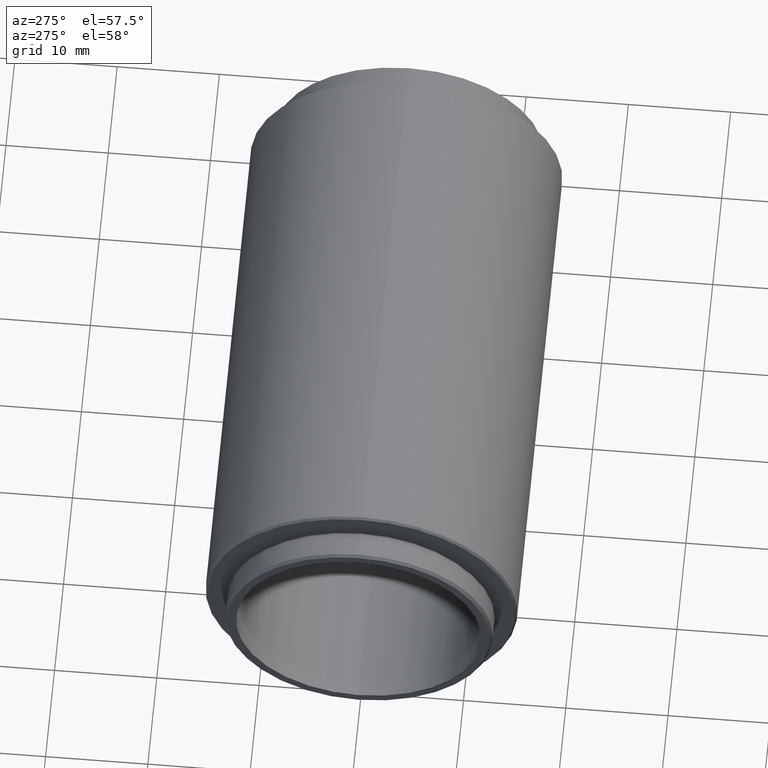
[diagram: clean part render]
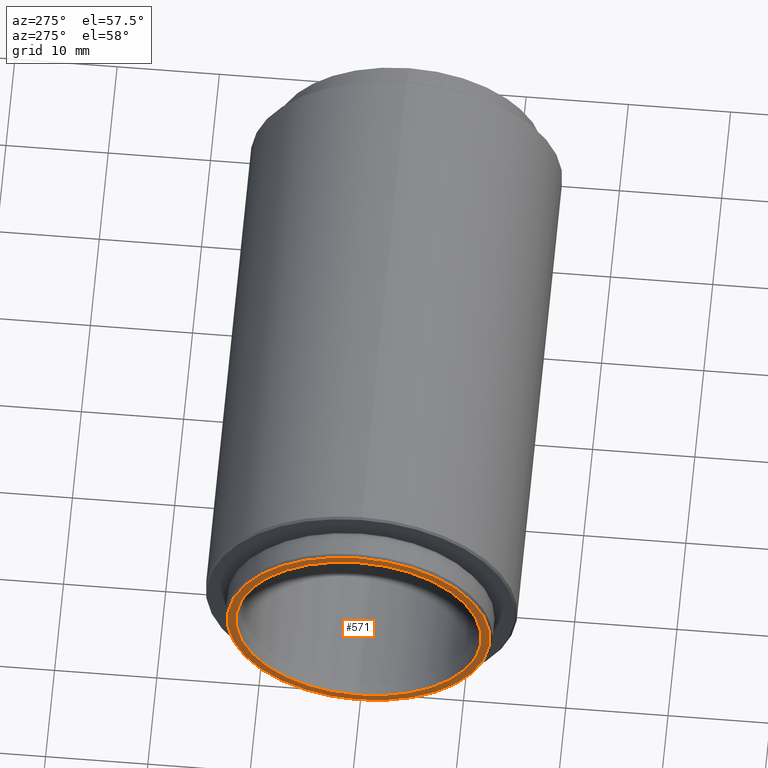
[diagram: same view with one face highlighted and labeled with its STEP entity id]
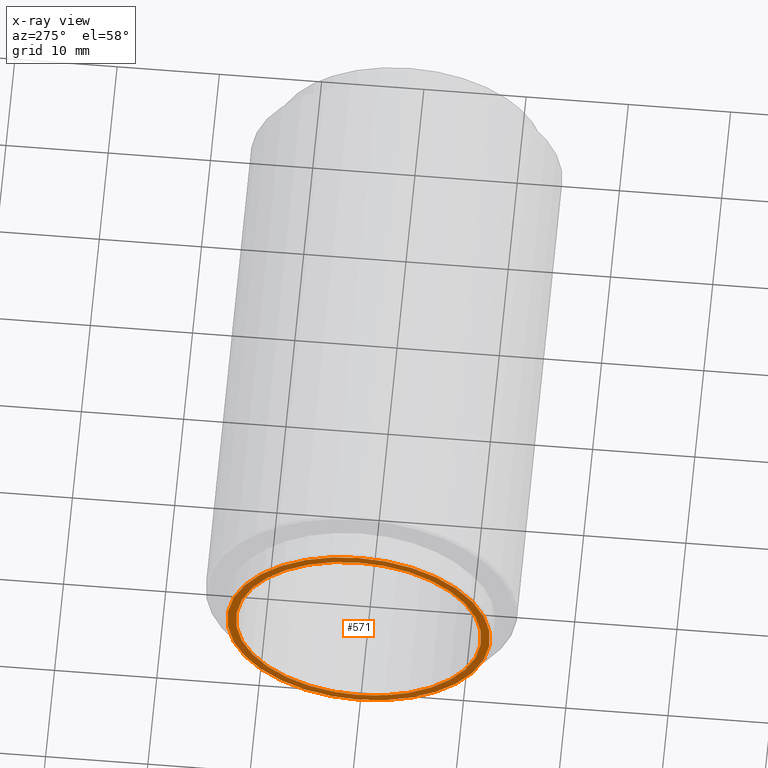
[diagram: x-ray of the same camera — body ghosted, the highlighted face saturated]
A machine part, auxiliary view. The second image highlights one B-rep face of the part: STEP entity #571.
The next image is the same camera in x-ray: the body ghosted, the highlighted face saturated — about 0% of this face is hidden behind the body in this view.
In plain terms, the highlighted planar face has unit normal (-1, 0, 0).
Its self-contained STEP definition (entity closure, byte-faithful):
#83 = CIRCLE ( 'NONE', #907, 12.00000000000000178 ) ;
#104 = EDGE_CURVE ( 'NONE', #179, #433, #117, .T. ) ;
#111 = CARTESIAN_POINT ( 'NONE',  ( -53.00000000000000711, 0.000000000000000000, 0.000000000000000000 ) ) ;
#117 = CIRCLE ( 'NONE', #130, 12.84999999999999964 ) ;
#130 = AXIS2_PLACEMENT_3D ( 'NONE', #111, #349, #425 ) ;
#132 = VERTEX_POINT ( 'NONE', #920 ) ;
#160 = AXIS2_PLACEMENT_3D ( 'NONE', #820, #341, #812 ) ;
#174 = FACE_OUTER_BOUND ( 'NONE', #1043, .T. ) ;
#179 = VERTEX_POINT ( 'NONE', #582 ) ;
#184 = PLANE ( 'NONE',  #160 ) ;
#187 = CIRCLE ( 'NONE', #919, 12.00000000000000178 ) ;
#190 = FACE_BOUND ( 'NONE', #496, .T. ) ;
#233 = DIRECTION ( 'NONE',  ( 1.000000000000000000, 0.000000000000000000, 0.000000000000000000 ) ) ;
#237 = DIRECTION ( 'NONE',  ( 0.000000000000000000, 0.000000000000000000, -1.000000000000000000 ) ) ;
#288 = CARTESIAN_POINT ( 'NONE',  ( -53.00000000000000711, 0.000000000000000000, -12.00000000000000178 ) ) ;
#341 = DIRECTION ( 'NONE',  ( -1.000000000000000000, 0.000000000000000000, 0.000000000000000000 ) ) ;
#349 = DIRECTION ( 'NONE',  ( -1.000000000000000000, 0.000000000000000000, 0.000000000000000000 ) ) ;
#356 = ORIENTED_EDGE ( 'NONE', *, *, #424, .T. ) ;
#405 = DIRECTION ( 'NONE',  ( 0.000000000000000000, 0.000000000000000000, 1.000000000000000000 ) ) ;
#408 = CARTESIAN_POINT ( 'NONE',  ( -53.00000000000000711, 0.000000000000000000, -12.84999999999999964 ) ) ;
#424 = EDGE_CURVE ( 'NONE', #747, #132, #83, .T. ) ;
#425 = DIRECTION ( 'NONE',  ( 0.000000000000000000, 0.000000000000000000, 1.000000000000000000 ) ) ;
#433 = VERTEX_POINT ( 'NONE', #408 ) ;
#462 = ORIENTED_EDGE ( 'NONE', *, *, #857, .T. ) ;
#469 = CARTESIAN_POINT ( 'NONE',  ( -53.00000000000000711, 0.000000000000000000, 0.000000000000000000 ) ) ;
#480 = CARTESIAN_POINT ( 'NONE',  ( -53.00000000000000711, 0.000000000000000000, 0.000000000000000000 ) ) ;
#496 = EDGE_LOOP ( 'NONE', ( #356, #462 ) ) ;
#552 = DIRECTION ( 'NONE',  ( 1.000000000000000000, 0.000000000000000000, 0.000000000000000000 ) ) ;
#571 = ADVANCED_FACE ( 'NONE', ( #190, #174 ), #184, .T. ) ;
#582 = CARTESIAN_POINT ( 'NONE',  ( -53.00000000000000711, 1.588979221893690953E-15, 12.84999999999999964 ) ) ;
#642 = CARTESIAN_POINT ( 'NONE',  ( -53.00000000000000711, 0.000000000000000000, 0.000000000000000000 ) ) ;
#716 = DIRECTION ( 'NONE',  ( 0.000000000000000000, 0.000000000000000000, -1.000000000000000000 ) ) ;
#747 = VERTEX_POINT ( 'NONE', #288 ) ;
#812 = DIRECTION ( 'NONE',  ( 0.000000000000000000, 0.000000000000000000, -1.000000000000000000 ) ) ;
#820 = CARTESIAN_POINT ( 'NONE',  ( -53.00000000000000711, 0.000000000000000000, 0.000000000000000000 ) ) ;
#832 = CIRCLE ( 'NONE', #841, 12.84999999999999964 ) ;
#837 = ORIENTED_EDGE ( 'NONE', *, *, #104, .T. ) ;
#841 = AXIS2_PLACEMENT_3D ( 'NONE', #480, #1050, #405 ) ;
#857 = EDGE_CURVE ( 'NONE', #132, #747, #187, .T. ) ;
#874 = ORIENTED_EDGE ( 'NONE', *, *, #916, .T. ) ;
#907 = AXIS2_PLACEMENT_3D ( 'NONE', #642, #552, #716 ) ;
#916 = EDGE_CURVE ( 'NONE', #433, #179, #832, .T. ) ;
#919 = AXIS2_PLACEMENT_3D ( 'NONE', #469, #233, #237 ) ;
#920 = CARTESIAN_POINT ( 'NONE',  ( -53.00000000000000711, 1.469576158976824144E-15, 12.00000000000000178 ) ) ;
#1043 = EDGE_LOOP ( 'NONE', ( #874, #837 ) ) ;
#1050 = DIRECTION ( 'NONE',  ( -1.000000000000000000, 0.000000000000000000, 0.000000000000000000 ) ) ;